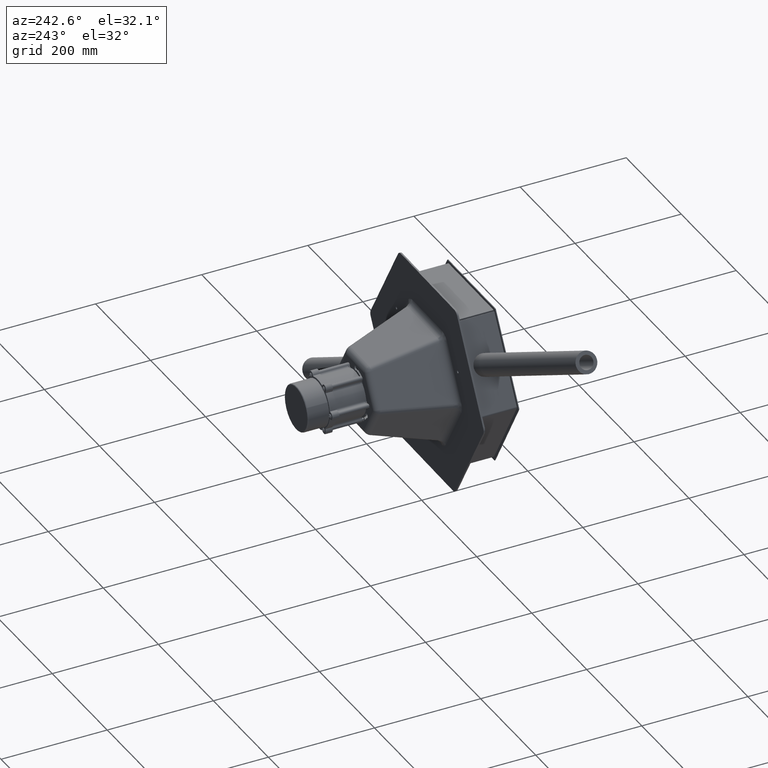
[diagram: clean part render]
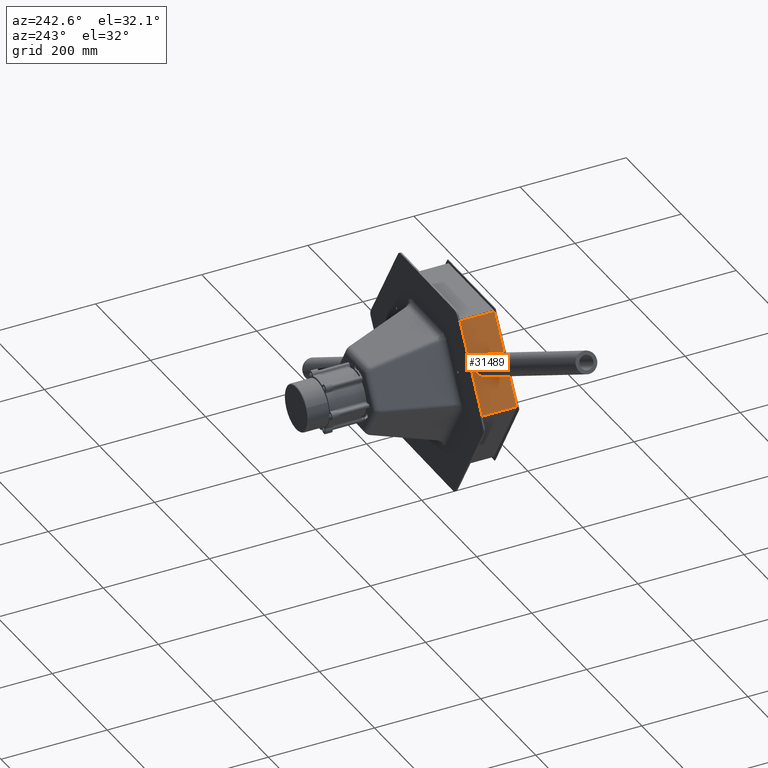
[diagram: same view with one face highlighted and labeled with its STEP entity id]
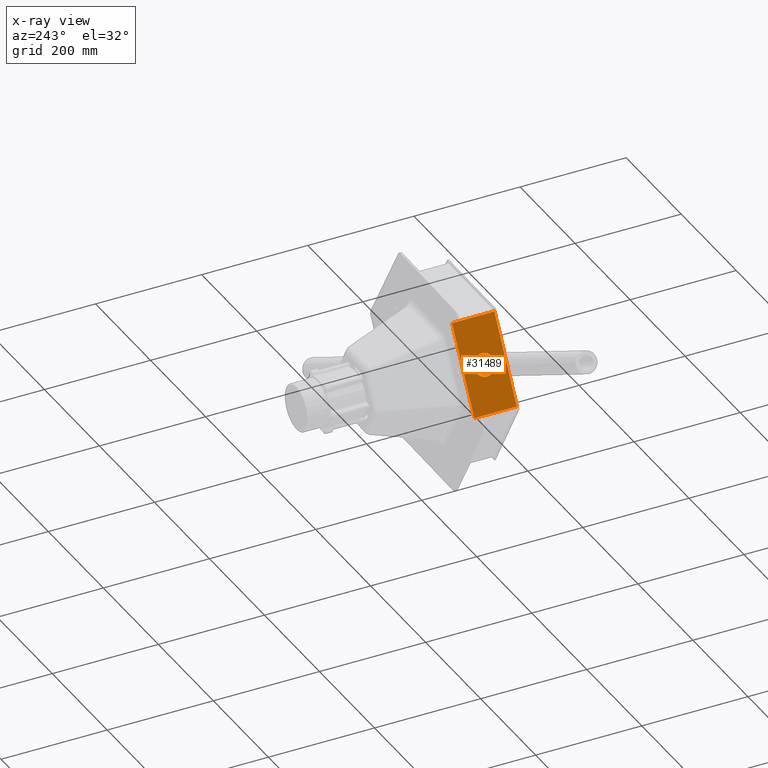
[diagram: x-ray of the same camera — body ghosted, the highlighted face saturated]
A machine part, auxiliary view. The second image highlights one B-rep face of the part: STEP entity #31489.
The next image is the same camera in x-ray: the body ghosted, the highlighted face saturated — about 1% of this face is hidden behind the body in this view.
In plain terms, the highlighted planar face has unit normal (0.8688, -0, -0.4951).
Its self-contained STEP definition (entity closure, byte-faithful):
#411 = CARTESIAN_POINT ( 'NONE',  ( 0.0000000000000000000, 0.0000000000000000000, -2.999999999999947153 ) ) ;
#1738 = EDGE_LOOP ( 'NONE', ( #5911, #24919, #8339, #21273 ) ) ;
#2824 = CARTESIAN_POINT ( 'NONE',  ( 378.9024120963171072, 40.00000000000007105, -2.999999999999975131 ) ) ;
#2851 = DIRECTION ( 'NONE',  ( 1.000000000000000000, 1.501379468507881430E-16, 0.0000000000000000000 ) ) ;
#3063 = DIRECTION ( 'NONE',  ( 1.000000000000000000, 2.397623950702040786E-17, 0.0000000000000000000 ) ) ;
#3271 = VERTEX_POINT ( 'NONE', #8546 ) ;
#3280 = LINE ( 'NONE', #2824, #29200 ) ;
#3373 = CARTESIAN_POINT ( 'NONE',  ( 378.9024120963171072, -39.99999999999992895, -3.000000000000002665 ) ) ;
#4316 = DIRECTION ( 'NONE',  ( 2.220446049250310616E-16, -8.502476337541284845E-18, -1.000000000000000000 ) ) ;
#4466 = AXIS2_PLACEMENT_3D ( 'NONE', #411, #18608, #3063 ) ;
#5621 = AXIS2_PLACEMENT_3D ( 'NONE', #24903, #9467, #27504 ) ;
#5911 = ORIENTED_EDGE ( 'NONE', *, *, #18065, .F. ) ;
#6383 = ORIENTED_EDGE ( 'NONE', *, *, #10190, .F. ) ;
#6991 = DIRECTION ( 'NONE',  ( -2.397623950702040478E-17, -1.000000000000000000, -8.502476337541312578E-18 ) ) ;
#7478 = VERTEX_POINT ( 'NONE', #30389 ) ;
#7820 = VECTOR ( 'NONE', #21480, 1000.000000000000000 ) ;
#8264 = CARTESIAN_POINT ( 'NONE',  ( 378.9024120963171072, 40.00000000000007105, -2.999999999999975131 ) ) ;
#8339 = ORIENTED_EDGE ( 'NONE', *, *, #21143, .F. ) ;
#8546 = CARTESIAN_POINT ( 'NONE',  ( 378.9024120963171072, -39.99999999999992895, -3.000000000000002665 ) ) ;
#8791 = EDGE_CURVE ( 'NONE', #25167, #10132, #3280, .T. ) ;
#9083 = EDGE_CURVE ( 'NONE', #11373, #7478, #14596, .T. ) ;
#9117 = VECTOR ( 'NONE', #2851, 1000.000000000000000 ) ;
#9467 = DIRECTION ( 'NONE',  ( 2.220446049250310616E-16, -8.502476337541284845E-18, -1.000000000000000000 ) ) ;
#9653 = CARTESIAN_POINT ( 'NONE',  ( 214.7529645128872176, 0.0000000000000000000, -3.000000000000002665 ) ) ;
#9885 = LINE ( 'NONE', #9653, #33234 ) ;
#10132 = VERTEX_POINT ( 'NONE', #11399 ) ;
#10140 = CIRCLE ( 'NONE', #30737, 20.00000000000001776 ) ;
#10190 = EDGE_CURVE ( 'NONE', #7478, #11373, #10140, .T. ) ;
#10858 = PLANE ( 'NONE',  #4466 ) ;
#11373 = VERTEX_POINT ( 'NONE', #33367 ) ;
#11399 = CARTESIAN_POINT ( 'NONE',  ( 214.7529645128872176, 40.00000000000000711, -3.000000000000002665 ) ) ;
#13500 = FACE_OUTER_BOUND ( 'NONE', #1738, .T. ) ;
#14596 = CIRCLE ( 'NONE', #5621, 20.00000000000001776 ) ;
#15657 = ORIENTED_EDGE ( 'NONE', *, *, #9083, .F. ) ;
#15915 = CARTESIAN_POINT ( 'NONE',  ( 378.9024120963171072, -39.99999999999992895, -3.000000000000002665 ) ) ;
#18065 = EDGE_CURVE ( 'NONE', #10132, #26007, #9885, .T. ) ;
#18608 = DIRECTION ( 'NONE',  ( -2.038574090716635909E-34, 8.502476337541287926E-18, 1.000000000000000000 ) ) ;
#19260 = CARTESIAN_POINT ( 'NONE',  ( 214.7529645128872176, -39.99999999999997868, -3.000000000000002665 ) ) ;
#19807 = CARTESIAN_POINT ( 'NONE',  ( 296.8276883046021339, 4.163336342344337027E-14, -2.999999999999975131 ) ) ;
#20416 = EDGE_CURVE ( 'NONE', #26007, #3271, #22794, .T. ) ;
#20723 = LINE ( 'NONE', #3373, #7820 ) ;
#21143 = EDGE_CURVE ( 'NONE', #3271, #25167, #20723, .T. ) ;
#21273 = ORIENTED_EDGE ( 'NONE', *, *, #20416, .F. ) ;
#21480 = DIRECTION ( 'NONE',  ( 2.397623950702040478E-17, 1.000000000000000000, 8.502476337541312578E-18 ) ) ;
#22403 = DIRECTION ( 'NONE',  ( -1.000000000000000000, -2.397623950702041094E-17, 0.0000000000000000000 ) ) ;
#22794 = LINE ( 'NONE', #15915, #9117 ) ;
#24903 = CARTESIAN_POINT ( 'NONE',  ( 296.8276883046021339, 4.163336342344337027E-14, -2.999999999999975131 ) ) ;
#24919 = ORIENTED_EDGE ( 'NONE', *, *, #8791, .F. ) ;
#25023 = EDGE_LOOP ( 'NONE', ( #6383, #15657 ) ) ;
#25167 = VERTEX_POINT ( 'NONE', #8264 ) ;
#26007 = VERTEX_POINT ( 'NONE', #19260 ) ;
#27504 = DIRECTION ( 'NONE',  ( -1.000000000000000000, -2.397623950702041094E-17, 0.0000000000000000000 ) ) ;
#28754 = DIRECTION ( 'NONE',  ( -1.000000000000000000, -1.501379468507881430E-16, 0.0000000000000000000 ) ) ;
#29200 = VECTOR ( 'NONE', #28754, 1000.000000000000000 ) ;
#30389 = CARTESIAN_POINT ( 'NONE',  ( 276.8276883046021339, 4.115383863330295906E-14, -2.999999999999975131 ) ) ;
#30737 = AXIS2_PLACEMENT_3D ( 'NONE', #19807, #4316, #22403 ) ;
#31489 = ADVANCED_FACE ( 'NONE', ( #33249, #13500 ), #10858, .F. ) ;
#33234 = VECTOR ( 'NONE', #6991, 1000.000000000000000 ) ;
#33249 = FACE_BOUND ( 'NONE', #25023, .T. ) ;
#33367 = CARTESIAN_POINT ( 'NONE',  ( 316.8276883046021908, 4.448991076300940834E-14, -2.999999999999970690 ) ) ;